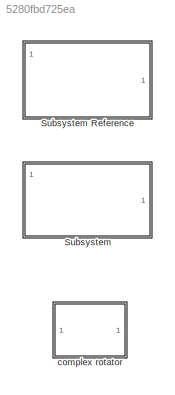
MODEL slx_5280fbd725ea
KIND library
CONFIG AbsTol = auto
CONFIG EnableMultiTasking = off
CONFIG FixedStep = auto
CONFIG MaxStep = auto
CONFIG MinStep = auto
CONFIG RelTol = 1e-3
CONFIG SampleTimeConstraint = Unconstrained
CONFIG SolverName = VariableStepAuto
CONFIG StartTime = 0.0
CONFIG StopTime = 10.0
BLOCK [SubSystem] Subsystem
  PortSchema = {"entries":[{"content":{"sides":[{"content":{"connectorIds":["LConn3","LConn1","LConn2"]},"type":"ConnectorPlacement.EquallySpacedRectSide","uuid":"8336b51e-e5d8-49cc-804f-7bfb99400ab0"},{"content":{"connectorIds":["LConn4","LConn5"],"side":"RIGHT"},"type":"ConnectorPlacement.EquallySpacedRectSide","uuid":"6f005c77-3014-47d2-89f9-41814728faba"},{"content":{"connectorIds":[],"side":"TOP"},"type":"C...<+272ch>
  ReferencedSubsystem = dn_converter
BLOCK [SubSystem] Subsystem Reference
  PortSchema = {"entries":[{"content":{"sides":[{"content":{"connectorIds":["LConn3","LConn4","LConn2","LConn1"]},"type":"ConnectorPlacement.EquallySpacedRectSide","uuid":"8336b51e-e5d8-49cc-804f-7bfb99400ab0"},{"content":{"connectorIds":["LConn5"],"side":"RIGHT"},"type":"ConnectorPlacement.EquallySpacedRectSide","uuid":"6f005c77-3014-47d2-89f9-41814728faba"},{"content":{"connectorIds":[],"side":"TOP"},"type":"C...<+272ch>
  ReferencedSubsystem = up_converter
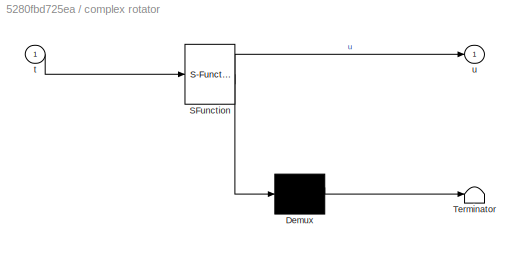
BLOCK [SubSystem] complex rotator
  ErrorFcn = Stateflow.Translate.translate
  LibrarySourceBlock = simulink/User-Defined\nFunctions/MATLAB Function
  PermitHierarchicalResolution = ExplicitOnly
  SFBlockType = MATLAB Function
  TreatAsAtomicUnit = on
BLOCK [Demux] complex rotator/ Demux 
  Outputs = 1
BLOCK [S-Function] complex rotator/ SFunction 
  EnableBusSupport = on
  FunctionName = sf_sfun
  PortCounts = [1 2]
  SFcnIsStateOwnerBlock = off
  SFunctionDeploymentMode = off
  Tag = Stateflow S-Function 2
BLOCK [Terminator] complex rotator/ Terminator 
BLOCK [Inport] complex rotator/t
BLOCK [Outport] complex rotator/u
CHART complex rotator states=1 transitions=1
  STATE_LABEL 'eML_blk_kernel()'
  STATE_LABEL 'SCRIPT:\nfunction u   = fcn(t)\n   %test of the block\n   t=double(t);\n   pdb=-12;   %dial input power in dBm 50-ohm reference\n   v = sqrt(1/1000*10^(pdb/10));\n   f=[1 2 3 4 5 6  ]*455e-5;\n   u=v*sum(exp(2.0*3.14*f*t*1j));\n '
CHART  states=0 transitions=0
